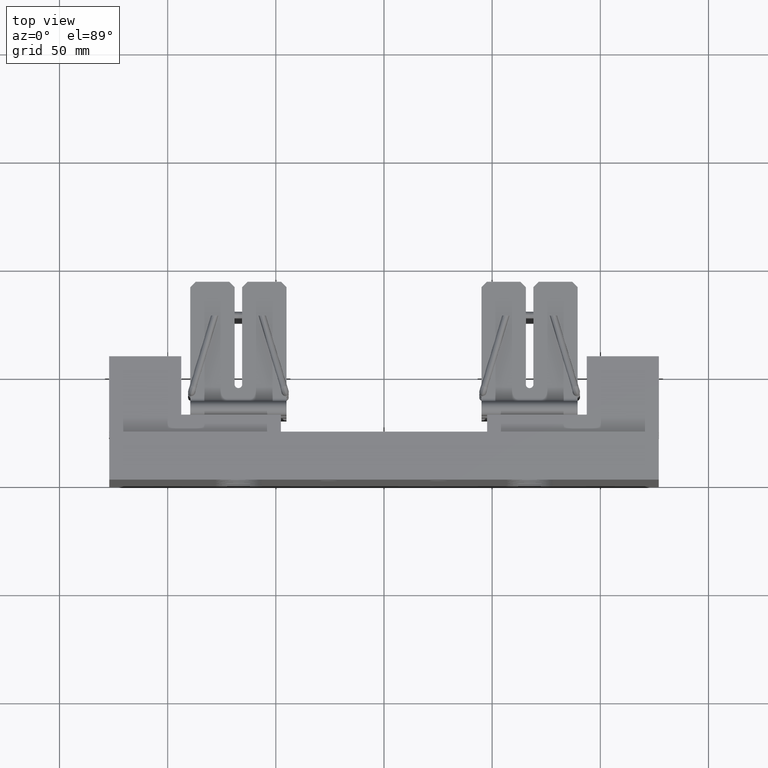
[diagram: clean part render]
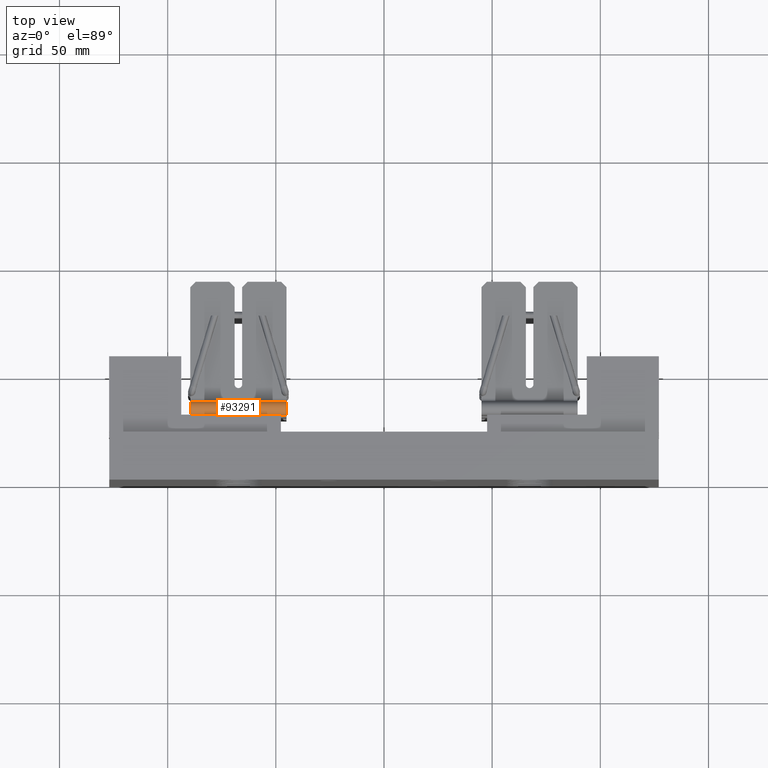
[diagram: same view with one face highlighted and labeled with its STEP entity id]
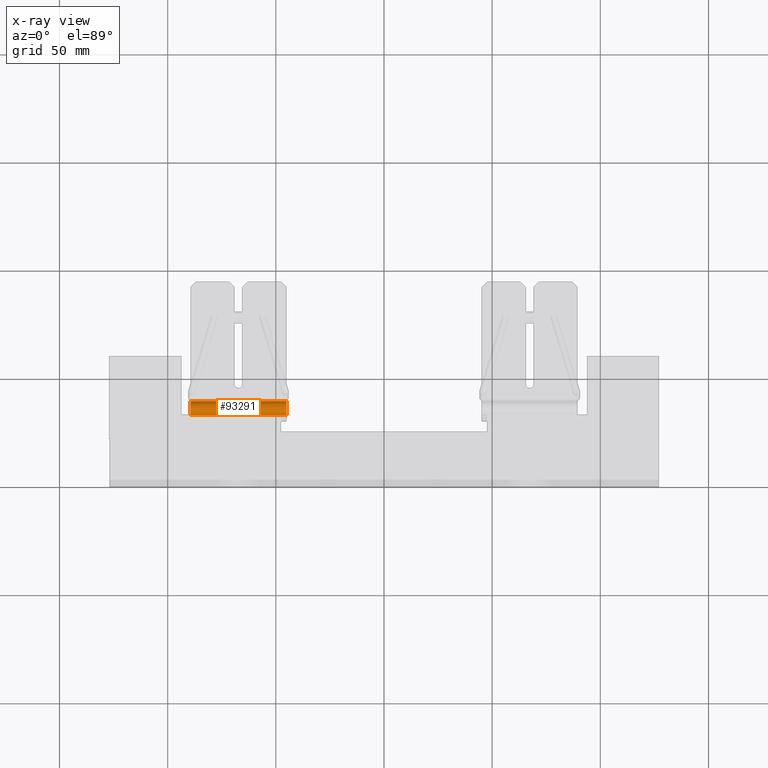
[diagram: x-ray of the same camera — body ghosted, the highlighted face saturated]
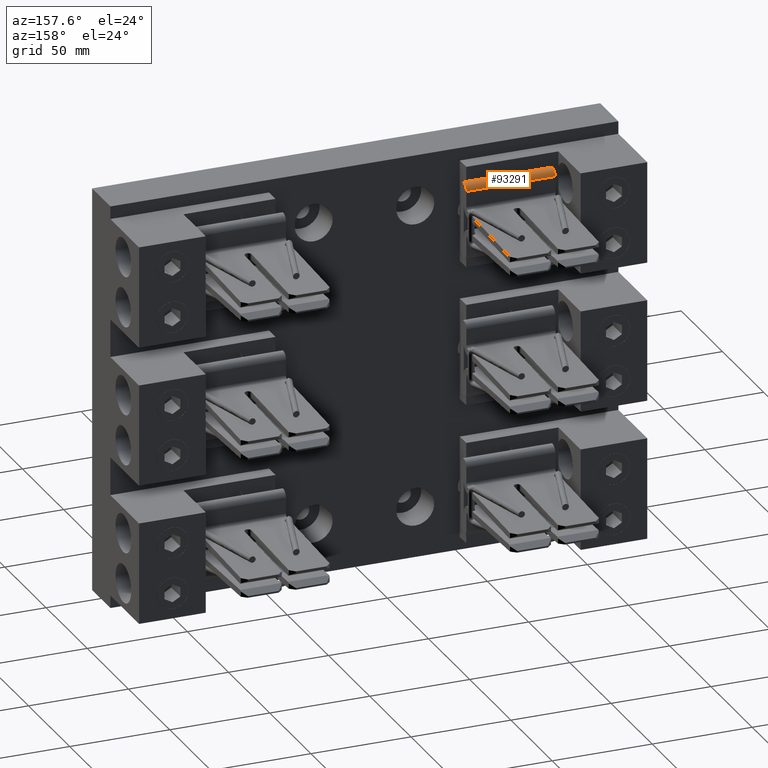
[diagram: same view with one face highlighted and labeled with its STEP entity id]
A machine part, top view. The second image highlights one B-rep face of the part: STEP entity #93291.
The next image is the same camera in x-ray: the body ghosted, the highlighted face saturated — about 0% of this face is hidden behind the body in this view.
A second angle (auxiliary view) of the same face is appended — the face is thin or edge-on in the first view.
In plain terms, the highlighted cylindrical surface (edge-blend (fillet) strip) has radius 3.175 mm, axis along (1, 0, 0).
Its self-contained STEP definition (entity closure, byte-faithful):
#4703 = DIRECTION ( 'NONE',  ( 1.000000000000000000, 9.941448615518459200E-017, 3.538835890992686500E-016 ) ) ;
#4727 = CARTESIAN_POINT ( 'NONE',  ( -3.525000000000000400, 1.312000000000000100, 3.381500000000000000 ) ) ;
#4746 = DIRECTION ( 'NONE',  ( 0.0000000000000000000, 0.0000000000000000000, -1.000000000000000000 ) ) ;
#15024 = DIRECTION ( 'NONE',  ( 1.000000000000000000, 9.941448615518459200E-017, 3.538835890992686500E-016 ) ) ;
#15031 = DIRECTION ( 'NONE',  ( 1.000000000000000000, 9.941448615518459200E-017, 3.538835890992686500E-016 ) ) ;
#15032 = CARTESIAN_POINT ( 'NONE',  ( -3.525000000000000400, 1.437000000000000100, 3.381500000000000000 ) ) ;
#15033 = CARTESIAN_POINT ( 'NONE',  ( -1.775000000000000100, 1.312000000000000300, 3.381500000000000400 ) ) ;
#15034 = DIRECTION ( 'NONE',  ( -1.000000000000000000, -9.941448615518459200E-017, -3.538835890992686500E-016 ) ) ;
#15035 = DIRECTION ( 'NONE',  ( 0.0000000000000000000, 0.0000000000000000000, 1.000000000000000000 ) ) ;
#15036 = CARTESIAN_POINT ( 'NONE',  ( -3.525000000000000400, 1.186999999999999800, 3.381500000000000000 ) ) ;
#15039 = CARTESIAN_POINT ( 'NONE',  ( -3.525000000000000400, 1.312000000000000100, 3.381500000000000000 ) ) ;
#15040 = DIRECTION ( 'NONE',  ( -1.000000000000000000, -9.941448615518459200E-017, -3.538835890992686500E-016 ) ) ;
#15041 = DIRECTION ( 'NONE',  ( 0.0000000000000000000, 0.0000000000000000000, 1.000000000000000000 ) ) ;
#25208 = LINE ( 'NONE', #15032, #25218 ) ;
#25214 = CIRCLE ( 'NONE', #28180, 0.1249999999999999000 ) ;
#25216 = CIRCLE ( 'NONE', #28182, 0.1249999999999999000 ) ;
#25218 = VECTOR ( 'NONE', #15024, 39.37007874015748100 ) ;
#25219 = LINE ( 'NONE', #15036, #25221 ) ;
#25221 = VECTOR ( 'NONE', #15031, 39.37007874015748100 ) ;
#28180 = AXIS2_PLACEMENT_3D ( 'NONE', #15033, #15034, #15035 ) ;
#28182 = AXIS2_PLACEMENT_3D ( 'NONE', #15039, #15040, #15041 ) ;
#46062 = EDGE_CURVE ( 'NONE', #65381, #65437, #25214, .T. ) ;
#46063 = EDGE_CURVE ( 'NONE', #65351, #65437, #25208, .T. ) ;
#46064 = EDGE_CURVE ( 'NONE', #65386, #65351, #25216, .T. ) ;
#46065 = EDGE_CURVE ( 'NONE', #65386, #65381, #25219, .T. ) ;
#47547 = CARTESIAN_POINT ( 'NONE',  ( -3.525000000000000400, 1.437000000000000100, 3.381500000000000000 ) ) ;
#47567 = CARTESIAN_POINT ( 'NONE',  ( -1.775000000000000100, 1.187000000000000300, 3.381500000000000400 ) ) ;
#47571 = CARTESIAN_POINT ( 'NONE',  ( -3.525000000000000400, 1.186999999999999800, 3.381500000000000000 ) ) ;
#47606 = CARTESIAN_POINT ( 'NONE',  ( -1.775000000000000100, 1.437000000000000300, 3.381500000000000400 ) ) ;
#64596 = ORIENTED_EDGE ( 'NONE', *, *, #46062, .T. ) ;
#64598 = ORIENTED_EDGE ( 'NONE', *, *, #46063, .F. ) ;
#64600 = ORIENTED_EDGE ( 'NONE', *, *, #46064, .F. ) ;
#64602 = ORIENTED_EDGE ( 'NONE', *, *, #46065, .T. ) ;
#65351 = VERTEX_POINT ( 'NONE', #47547 ) ;
#65381 = VERTEX_POINT ( 'NONE', #47567 ) ;
#65386 = VERTEX_POINT ( 'NONE', #47571 ) ;
#65437 = VERTEX_POINT ( 'NONE', #47606 ) ;
#66437 = FACE_OUTER_BOUND ( 'NONE', #79832, .T. ) ;
#66467 = CYLINDRICAL_SURFACE ( 'NONE', #67305, 0.1249999999999999000 ) ;
#67305 = AXIS2_PLACEMENT_3D ( 'NONE', #4727, #4703, #4746 ) ;
#79832 = EDGE_LOOP ( 'NONE', ( #64596, #64598, #64600, #64602 ) ) ;
#93291 = ADVANCED_FACE ( 'NONE', ( #66437 ), #66467, .T. ) ;